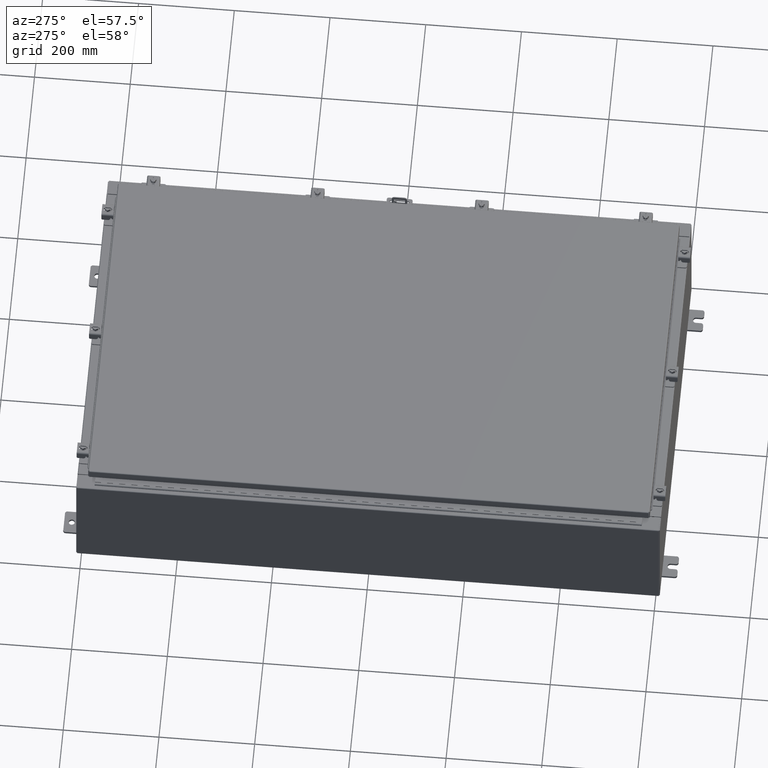
[diagram: clean part render]
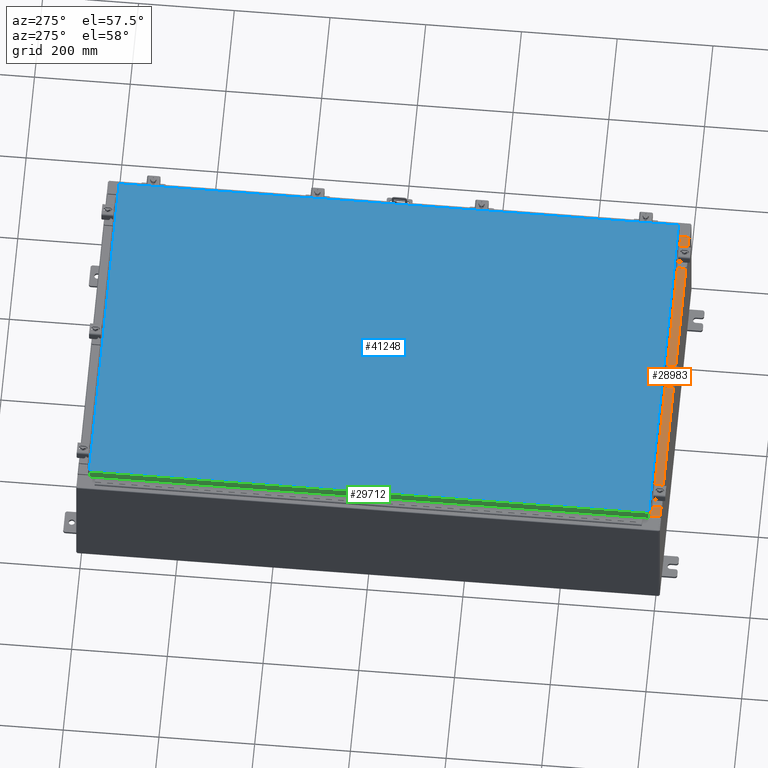
[diagram: same view with three faces highlighted in distinct colors, each labeled with its STEP entity id]
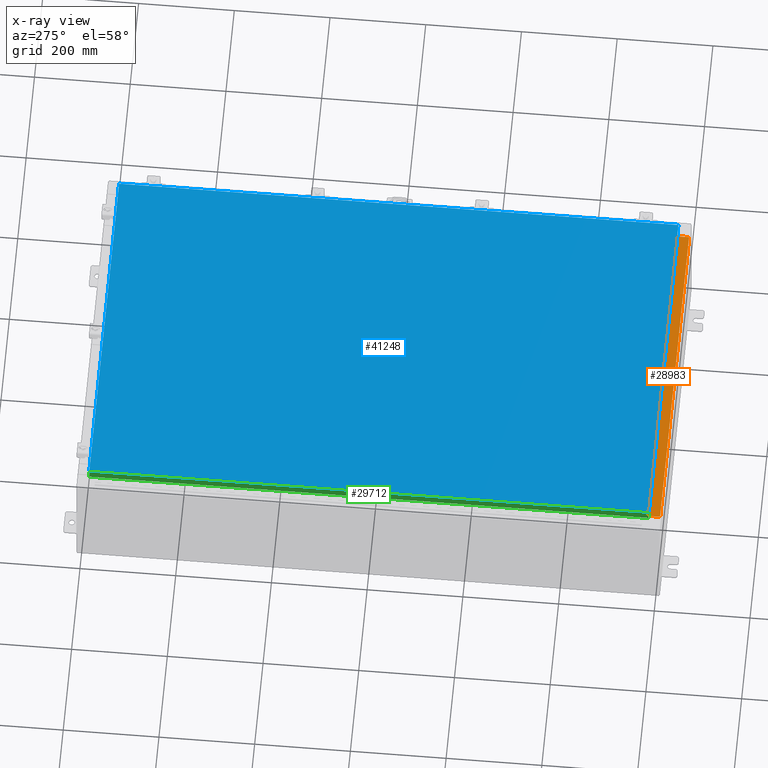
[diagram: x-ray of the same camera — body ghosted, the three highlighted faces saturated]
A machine part, auxiliary view with three faces highlighted in distinct colors.
The next image is the same camera in x-ray (body ghosted, the three faces saturated) — at least one of them is partly hidden behind the body in this view.
Their STEP definitions:

[orange] entity #28983 — the highlighted planar face has unit normal (-0, -0, 1).
#618 = LINE ( 'NONE', #6164, #51658 ) ;
#1704 = ORIENTED_EDGE ( 'NONE', *, *, #2802, .F. ) ;
#1878 = AXIS2_PLACEMENT_3D ( 'NONE', #9539, #13582, #41675 ) ;
#2563 = VECTOR ( 'NONE', #8126, 39.37007874015748100 ) ;
#2594 = VECTOR ( 'NONE', #3386, 39.37007874015748100 ) ;
#2802 = EDGE_CURVE ( 'NONE', #10796, #36671, #26983, .T. ) ;
#3386 = DIRECTION ( 'NONE',  ( -1.000000000000000000, -4.006464660875052000E-017, 1.428858021605520200E-031 ) ) ;
#6164 = CARTESIAN_POINT ( 'NONE',  ( 13.63719999999999800, -1.287299999999999900, 5.000000000000002700 ) ) ;
#7637 = DIRECTION ( 'NONE',  ( -1.000000000000000000, 0.0000000000000000000, 0.0000000000000000000 ) ) ;
#7874 = VERTEX_POINT ( 'NONE', #17909 ) ;
#8126 = DIRECTION ( 'NONE',  ( -0.0000000000000000000, 1.000000000000000000, -3.566381192773190000E-015 ) ) ;
#9539 = CARTESIAN_POINT ( 'NONE',  ( 0.0000000000000000000, 1.782631094477737600E-014, 5.000000000000000000 ) ) ;
#10405 = FACE_OUTER_BOUND ( 'NONE', #31283, .T. ) ;
#10796 = VERTEX_POINT ( 'NONE', #25572 ) ;
#11649 = EDGE_CURVE ( 'NONE', #36671, #47854, #618, .T. ) ;
#13366 = LINE ( 'NONE', #47566, #2594 ) ;
#13582 = DIRECTION ( 'NONE',  ( 0.0000000000000000000, 3.566381192773190000E-015, 1.000000000000000000 ) ) ;
#15105 = CARTESIAN_POINT ( 'NONE',  ( -13.63720000000000400, -1.287299999999999200, 5.000000000000004400 ) ) ;
#17909 = CARTESIAN_POINT ( 'NONE',  ( -13.63720000000000400, -0.08770000000000081900, 5.000000000000000000 ) ) ;
#22431 = ORIENTED_EDGE ( 'NONE', *, *, #50840, .T. ) ;
#25572 = CARTESIAN_POINT ( 'NONE',  ( 13.63719999999999800, -0.08770000000000047200, 5.000000000000000000 ) ) ;
#25719 = VECTOR ( 'NONE', #26749, 39.37007874015748100 ) ;
#26063 = CARTESIAN_POINT ( 'NONE',  ( 13.63719999999999800, -1.300299999999999800, 5.000000000000004400 ) ) ;
#26749 = DIRECTION ( 'NONE',  ( -0.0000000000000000000, -1.000000000000000000, 3.566381192773190000E-015 ) ) ;
#26983 = LINE ( 'NONE', #26063, #25719 ) ;
#28983 = ADVANCED_FACE ( 'NONE', ( #10405 ), #41493, .T. ) ;
#30474 = EDGE_CURVE ( 'NONE', #47854, #7874, #36011, .T. ) ;
#30774 = ORIENTED_EDGE ( 'NONE', *, *, #30474, .F. ) ;
#31283 = EDGE_LOOP ( 'NONE', ( #30774, #47683, #1704, #22431 ) ) ;
#36011 = LINE ( 'NONE', #44167, #2563 ) ;
#36671 = VERTEX_POINT ( 'NONE', #44623 ) ;
#41493 = PLANE ( 'NONE',  #1878 ) ;
#41675 = DIRECTION ( 'NONE',  ( 0.0000000000000000000, -1.000000000000000000, 3.566381192773190000E-015 ) ) ;
#44167 = CARTESIAN_POINT ( 'NONE',  ( -13.63720000000000400, -0.07469999999999973900, 5.000000000000000000 ) ) ;
#44623 = CARTESIAN_POINT ( 'NONE',  ( 13.63719999999999800, -1.287299999999999900, 5.000000000000004400 ) ) ;
#47566 = CARTESIAN_POINT ( 'NONE',  ( 3.513669507588167300E-018, -0.08770000000000081900, 5.000000000000000000 ) ) ;
#47683 = ORIENTED_EDGE ( 'NONE', *, *, #11649, .F. ) ;
#47854 = VERTEX_POINT ( 'NONE', #15105 ) ;
#50840 = EDGE_CURVE ( 'NONE', #10796, #7874, #13366, .T. ) ;
#51658 = VECTOR ( 'NONE', #7637, 39.37007874015748100 ) ;

[blue] entity #41248 — the highlighted planar face has unit normal (0, 0, -1).
#443 = EDGE_CURVE ( 'NONE', #4469, #30434, #1948, .T. ) ;
#557 = VECTOR ( 'NONE', #51968, 39.37007874015748100 ) ;
#1948 = LINE ( 'NONE', #50291, #11486 ) ;
#2797 = CARTESIAN_POINT ( 'NONE',  ( 13.99029999999999800, 23.00630000000001000, 1.946441695485787500E-015 ) ) ;
#4469 = VERTEX_POINT ( 'NONE', #2797 ) ;
#4526 = DIRECTION ( 'NONE',  ( 0.0000000000000000000, 0.0000000000000000000, -1.000000000000000000 ) ) ;
#9292 = CARTESIAN_POINT ( 'NONE',  ( 13.99029999999999800, -23.00630000000000300, -2.048885995248197400E-016 ) ) ;
#9462 = CARTESIAN_POINT ( 'NONE',  ( 13.99029999999999800, -23.00630000000000300, -2.048885995248197400E-016 ) ) ;
#9480 = DIRECTION ( 'NONE',  ( 0.0000000000000000000, 1.000000000000000000, 0.0000000000000000000 ) ) ;
#11486 = VECTOR ( 'NONE', #48289, 39.37007874015748100 ) ;
#14580 = VERTEX_POINT ( 'NONE', #38187 ) ;
#15541 = VERTEX_POINT ( 'NONE', #9462 ) ;
#15542 = EDGE_CURVE ( 'NONE', #15541, #4469, #36239, .T. ) ;
#20620 = PLANE ( 'NONE',  #48631 ) ;
#20756 = CARTESIAN_POINT ( 'NONE',  ( -13.99029999999999800, -23.00630000000000300, 1.946441695485787500E-015 ) ) ;
#20967 = ORIENTED_EDGE ( 'NONE', *, *, #44945, .T. ) ;
#21614 = LINE ( 'NONE', #20756, #41681 ) ;
#24801 = DIRECTION ( 'NONE',  ( 1.000000000000000000, -0.0000000000000000000, -0.0000000000000000000 ) ) ;
#24819 = ORIENTED_EDGE ( 'NONE', *, *, #443, .T. ) ;
#28686 = CARTESIAN_POINT ( 'NONE',  ( 0.0000000000000000000, 0.0000000000000000000, 0.0000000000000000000 ) ) ;
#30411 = ORIENTED_EDGE ( 'NONE', *, *, #15542, .T. ) ;
#30434 = VERTEX_POINT ( 'NONE', #43805 ) ;
#31472 = LINE ( 'NONE', #47951, #557 ) ;
#32711 = DIRECTION ( 'NONE',  ( -1.000000000000000000, 0.0000000000000000000, -0.0000000000000000000 ) ) ;
#32956 = FACE_OUTER_BOUND ( 'NONE', #44993, .T. ) ;
#36239 = LINE ( 'NONE', #9292, #45642 ) ;
#38187 = CARTESIAN_POINT ( 'NONE',  ( -13.99029999999999800, -23.00630000000000300, 1.946441695485787500E-015 ) ) ;
#41248 = ADVANCED_FACE ( 'NONE', ( #32956 ), #20620, .F. ) ;
#41681 = VECTOR ( 'NONE', #24801, 39.37007874015748100 ) ;
#43805 = CARTESIAN_POINT ( 'NONE',  ( -13.99029999999999800, 23.00630000000001000, -2.048885995248197400E-016 ) ) ;
#44945 = EDGE_CURVE ( 'NONE', #30434, #14580, #31472, .T. ) ;
#44993 = EDGE_LOOP ( 'NONE', ( #48468, #30411, #24819, #20967 ) ) ;
#45642 = VECTOR ( 'NONE', #9480, 39.37007874015748100 ) ;
#47951 = CARTESIAN_POINT ( 'NONE',  ( -13.99029999999999800, 23.00630000000000300, -2.048885995248197400E-016 ) ) ;
#48289 = DIRECTION ( 'NONE',  ( -1.000000000000000000, -0.0000000000000000000, -0.0000000000000000000 ) ) ;
#48468 = ORIENTED_EDGE ( 'NONE', *, *, #50395, .T. ) ;
#48631 = AXIS2_PLACEMENT_3D ( 'NONE', #28686, #4526, #32711 ) ;
#50291 = CARTESIAN_POINT ( 'NONE',  ( 13.99029999999999800, 23.00630000000001000, 1.946441695485787500E-015 ) ) ;
#50395 = EDGE_CURVE ( 'NONE', #14580, #15541, #21614, .T. ) ;
#51968 = DIRECTION ( 'NONE',  ( 0.0000000000000000000, -1.000000000000000000, 0.0000000000000000000 ) ) ;

[green] entity #29712 — the highlighted planar face has unit normal (1, 0, -0).
#2336 = DIRECTION ( 'NONE',  ( -3.034122441942816500E-015, 0.0000000000000000000, -1.000000000000000000 ) ) ;
#3039 = LINE ( 'NONE', #35094, #33956 ) ;
#4278 = VECTOR ( 'NONE', #27908, 39.37007874015748100 ) ;
#4588 = VERTEX_POINT ( 'NONE', #49800 ) ;
#6559 = CARTESIAN_POINT ( 'NONE',  ( -14.07799999999999900, 23.00515786437627600, -0.7949999999999941600 ) ) ;
#6568 = DIRECTION ( 'NONE',  ( -3.034122441942816500E-015, 6.982962677686267500E-015, -1.000000000000000000 ) ) ;
#7575 = LINE ( 'NONE', #30698, #49129 ) ;
#9102 = CARTESIAN_POINT ( 'NONE',  ( -14.07799999999999800, -23.00515786437627200, -0.08770000000000007000 ) ) ;
#10982 = DIRECTION ( 'NONE',  ( -0.0000000000000000000, 1.000000000000000000, 1.212498568245375000E-016 ) ) ;
#13702 = EDGE_CURVE ( 'NONE', #22785, #24649, #36443, .T. ) ;
#14874 = LINE ( 'NONE', #51985, #45685 ) ;
#18700 = EDGE_LOOP ( 'NONE', ( #35024, #18732, #36657, #46213 ) ) ;
#18732 = ORIENTED_EDGE ( 'NONE', *, *, #32078, .T. ) ;
#22785 = VERTEX_POINT ( 'NONE', #9102 ) ;
#24649 = VERTEX_POINT ( 'NONE', #29842 ) ;
#24780 = FACE_OUTER_BOUND ( 'NONE', #18700, .T. ) ;
#26520 = DIRECTION ( 'NONE',  ( 1.000000000000000000, 3.678869116736826000E-031, -3.034122441942816500E-015 ) ) ;
#27663 = CARTESIAN_POINT ( 'NONE',  ( -14.07799999999999800, -23.00515786437627200, -0.07469999999999976700 ) ) ;
#27908 = DIRECTION ( 'NONE',  ( -3.034122441942816500E-015, 6.982962677686267500E-015, -1.000000000000000000 ) ) ;
#27916 = DIRECTION ( 'NONE',  ( 3.678869116736826000E-031, -1.000000000000000000, -1.084461527917214800E-045 ) ) ;
#29712 = ADVANCED_FACE ( 'NONE', ( #24780 ), #42458, .F. ) ;
#29842 = CARTESIAN_POINT ( 'NONE',  ( -14.07799999999999900, -23.00515786437626900, -0.7949999999999996000 ) ) ;
#30403 = CARTESIAN_POINT ( 'NONE',  ( -14.07799999999999800, -5.179111942542102700E-030, 4.297518939368254200E-014 ) ) ;
#30698 = CARTESIAN_POINT ( 'NONE',  ( -14.07799999999999800, 23.00515786437627200, 2.036193481549027800E-013 ) ) ;
#32078 = EDGE_CURVE ( 'NONE', #4588, #47102, #7575, .T. ) ;
#33956 = VECTOR ( 'NONE', #10982, 39.37007874015748100 ) ;
#35024 = ORIENTED_EDGE ( 'NONE', *, *, #47972, .F. ) ;
#35094 = CARTESIAN_POINT ( 'NONE',  ( -14.07799999999999900, -23.09400000000000100, -0.7949999999999997100 ) ) ;
#36443 = LINE ( 'NONE', #27663, #4278 ) ;
#36657 = ORIENTED_EDGE ( 'NONE', *, *, #45326, .F. ) ;
#42458 = PLANE ( 'NONE',  #51187 ) ;
#45326 = EDGE_CURVE ( 'NONE', #24649, #47102, #3039, .T. ) ;
#45685 = VECTOR ( 'NONE', #27916, 39.37007874015748100 ) ;
#46213 = ORIENTED_EDGE ( 'NONE', *, *, #13702, .F. ) ;
#47102 = VERTEX_POINT ( 'NONE', #6559 ) ;
#47972 = EDGE_CURVE ( 'NONE', #4588, #22785, #14874, .T. ) ;
#49129 = VECTOR ( 'NONE', #6568, 39.37007874015748100 ) ;
#49800 = CARTESIAN_POINT ( 'NONE',  ( -14.07799999999999800, 23.00515786437627200, -0.08770000000000004200 ) ) ;
#51187 = AXIS2_PLACEMENT_3D ( 'NONE', #30403, #26520, #2336 ) ;
#51985 = CARTESIAN_POINT ( 'NONE',  ( -14.07799999999999800, -23.09400000000000100, -0.08770000000000004200 ) ) ;